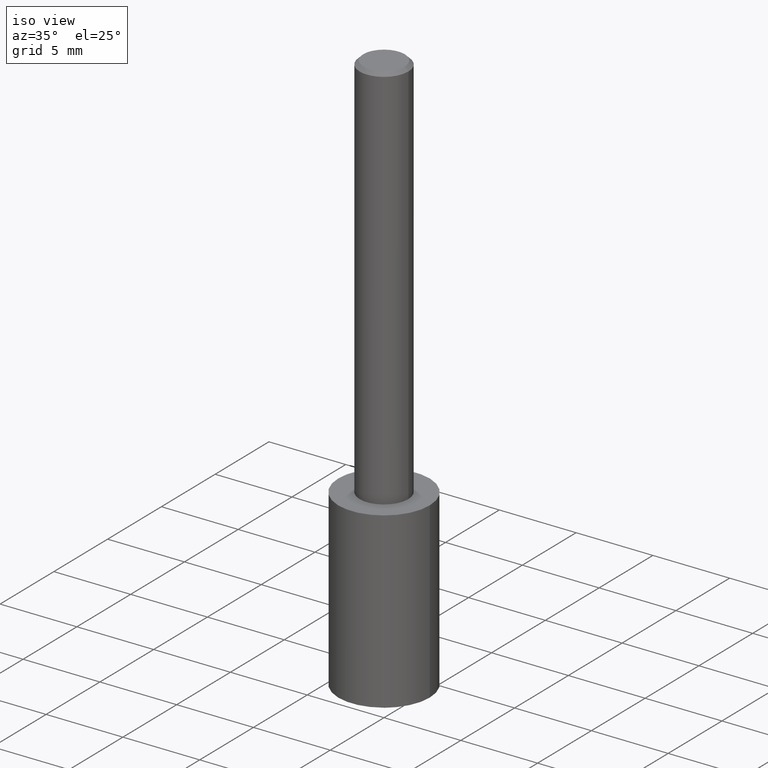
[diagram: clean part render]
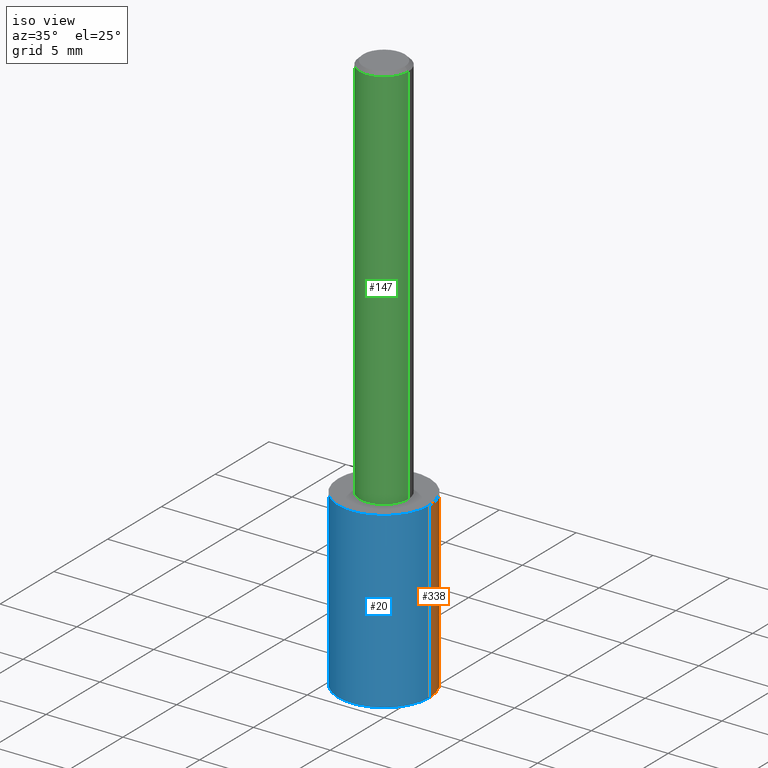
[diagram: same view with three faces highlighted in distinct colors, each labeled with its STEP entity id]
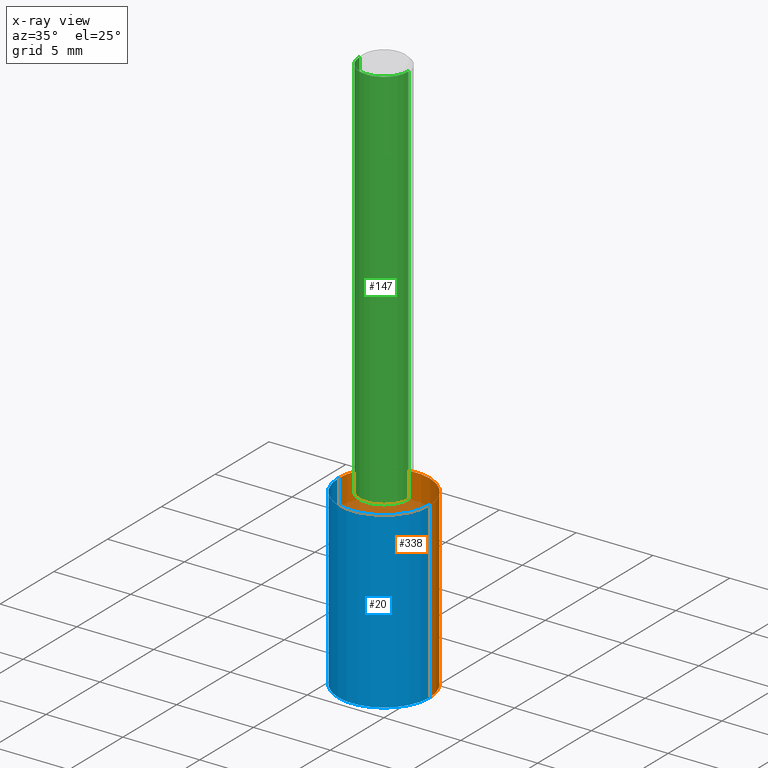
[diagram: x-ray of the same camera — body ghosted, the three highlighted faces saturated]
A machine part, iso view with three faces highlighted in distinct colors.
The next image is the same camera in x-ray (body ghosted, the three faces saturated) — at least one of them is partly hidden behind the body in this view.
Their STEP definitions:

[orange] entity #338 — the highlighted cylindrical surface (partial cylindrical patch) has radius 2.9756 mm, axis along (-0, 0, 1).
#8 = CARTESIAN_POINT ( 'NONE',  ( 0.1171500000000000041, -4.309535416534092526E-15, -1.000000000000000222 ) ) ;
#37 = DIRECTION ( 'NONE',  ( 1.000000000000000000, -6.982962677686266711E-15, 0.000000000000000000 ) ) ;
#45 = AXIS2_PLACEMENT_3D ( 'NONE', #83, #169, #112 ) ;
#50 = LINE ( 'NONE', #161, #255 ) ;
#64 = DIRECTION ( 'NONE',  ( 1.000000000000000000, -6.982962677686266711E-15, 0.000000000000000000 ) ) ;
#66 = ORIENTED_EDGE ( 'NONE', *, *, #220, .T. ) ;
#81 = LINE ( 'NONE', #188, #113 ) ;
#83 = CARTESIAN_POINT ( 'NONE',  ( 2.445468806185137438E-29, -3.491481338843146371E-15, -1.000000000000000222 ) ) ;
#85 = CARTESIAN_POINT ( 'NONE',  ( 3.534612280796804494E-29, -5.046489567658612481E-15, -1.445372057847142067 ) ) ;
#97 = CIRCLE ( 'NONE', #140, 0.1171500000000000041 ) ;
#112 = DIRECTION ( 'NONE',  ( 1.000000000000000000, -6.982962677686266711E-15, 0.000000000000000000 ) ) ;
#113 = VECTOR ( 'NONE', #284, 39.37007874015748143 ) ;
#123 = ORIENTED_EDGE ( 'NONE', *, *, #189, .F. ) ;
#128 = VERTEX_POINT ( 'NONE', #317 ) ;
#140 = AXIS2_PLACEMENT_3D ( 'NONE', #85, #197, #37 ) ;
#161 = CARTESIAN_POINT ( 'NONE',  ( -0.1171500000000000041, -2.659080523900189172E-15, -1.000000000000000222 ) ) ;
#169 = DIRECTION ( 'NONE',  ( -2.445468806185136597E-29, 3.491481338843145583E-15, 1.000000000000000000 ) ) ;
#170 = FACE_OUTER_BOUND ( 'NONE', #310, .T. ) ;
#172 = CARTESIAN_POINT ( 'NONE',  ( 2.445468806185136877E-29, -3.491481338843145977E-15, -1.000000000000000222 ) ) ;
#173 = VERTEX_POINT ( 'NONE', #8 ) ;
#176 = ORIENTED_EDGE ( 'NONE', *, *, #309, .F. ) ;
#188 = CARTESIAN_POINT ( 'NONE',  ( 0.1171500000000000041, -4.309535416534092526E-15, -1.000000000000000222 ) ) ;
#189 = EDGE_CURVE ( 'NONE', #326, #173, #81, .T. ) ;
#197 = DIRECTION ( 'NONE',  ( -2.445468806185136597E-29, 3.491481338843145583E-15, 1.000000000000000000 ) ) ;
#199 = ORIENTED_EDGE ( 'NONE', *, *, #285, .T. ) ;
#209 = VERTEX_POINT ( 'NONE', #236 ) ;
#220 = EDGE_CURVE ( 'NONE', #209, #128, #50, .T. ) ;
#231 = DIRECTION ( 'NONE',  ( -2.445468806185136877E-29, 3.491481338843145188E-15, 1.000000000000000000 ) ) ;
#236 = CARTESIAN_POINT ( 'NONE',  ( -0.1171499999999999764, -4.214088752715654492E-15, -1.445372057847142067 ) ) ;
#255 = VECTOR ( 'NONE', #231, 39.37007874015748143 ) ;
#284 = DIRECTION ( 'NONE',  ( -2.445468806185136877E-29, 3.491481338843145188E-15, 1.000000000000000000 ) ) ;
#285 = EDGE_CURVE ( 'NONE', #326, #209, #97, .T. ) ;
#290 = DIRECTION ( 'NONE',  ( -2.445468806185136597E-29, 3.491481338843145583E-15, 1.000000000000000000 ) ) ;
#293 = AXIS2_PLACEMENT_3D ( 'NONE', #172, #290, #64 ) ;
#309 = EDGE_CURVE ( 'NONE', #173, #128, #313, .T. ) ;
#310 = EDGE_LOOP ( 'NONE', ( #199, #66, #176, #123 ) ) ;
#313 = CIRCLE ( 'NONE', #293, 0.1171500000000000041 ) ;
#317 = CARTESIAN_POINT ( 'NONE',  ( -0.1171500000000000041, -3.436584638307922029E-15, -1.000000000000000222 ) ) ;
#320 = CYLINDRICAL_SURFACE ( 'NONE', #45, 0.1171500000000000041 ) ;
#325 = CARTESIAN_POINT ( 'NONE',  ( 0.1171499999999999764, -5.864543645349557452E-15, -1.445372057847142067 ) ) ;
#326 = VERTEX_POINT ( 'NONE', #325 ) ;
#338 = ADVANCED_FACE ( 'NONE', ( #170 ), #320, .T. ) ;

[blue] entity #20 — the highlighted cylindrical surface (partial cylindrical patch) has radius 2.9756 mm, axis along (-0, 0, 1).
#8 = CARTESIAN_POINT ( 'NONE',  ( 0.1171500000000000041, -4.309535416534092526E-15, -1.000000000000000222 ) ) ;
#12 = DIRECTION ( 'NONE',  ( -2.445468806185136597E-29, 3.491481338843145583E-15, 1.000000000000000000 ) ) ;
#20 = ADVANCED_FACE ( 'NONE', ( #182 ), #271, .T. ) ;
#21 = DIRECTION ( 'NONE',  ( -2.445468806185136597E-29, 3.491481338843145583E-15, 1.000000000000000000 ) ) ;
#36 = ORIENTED_EDGE ( 'NONE', *, *, #232, .F. ) ;
#38 = DIRECTION ( 'NONE',  ( -2.445468806185136597E-29, 3.491481338843145583E-15, 1.000000000000000000 ) ) ;
#44 = CARTESIAN_POINT ( 'NONE',  ( 2.445468806185137438E-29, -3.491481338843146371E-15, -1.000000000000000222 ) ) ;
#47 = DIRECTION ( 'NONE',  ( 1.000000000000000000, -6.982962677686266711E-15, 0.000000000000000000 ) ) ;
#50 = LINE ( 'NONE', #161, #255 ) ;
#52 = AXIS2_PLACEMENT_3D ( 'NONE', #44, #12, #47 ) ;
#60 = EDGE_CURVE ( 'NONE', #209, #326, #165, .T. ) ;
#81 = LINE ( 'NONE', #188, #113 ) ;
#89 = ORIENTED_EDGE ( 'NONE', *, *, #220, .F. ) ;
#98 = ORIENTED_EDGE ( 'NONE', *, *, #60, .T. ) ;
#106 = AXIS2_PLACEMENT_3D ( 'NONE', #316, #38, #329 ) ;
#113 = VECTOR ( 'NONE', #284, 39.37007874015748143 ) ;
#128 = VERTEX_POINT ( 'NONE', #317 ) ;
#130 = CIRCLE ( 'NONE', #184, 0.1171500000000000041 ) ;
#161 = CARTESIAN_POINT ( 'NONE',  ( -0.1171500000000000041, -2.659080523900189172E-15, -1.000000000000000222 ) ) ;
#165 = CIRCLE ( 'NONE', #106, 0.1171500000000000041 ) ;
#173 = VERTEX_POINT ( 'NONE', #8 ) ;
#182 = FACE_OUTER_BOUND ( 'NONE', #295, .T. ) ;
#184 = AXIS2_PLACEMENT_3D ( 'NONE', #262, #21, #278 ) ;
#188 = CARTESIAN_POINT ( 'NONE',  ( 0.1171500000000000041, -4.309535416534092526E-15, -1.000000000000000222 ) ) ;
#189 = EDGE_CURVE ( 'NONE', #326, #173, #81, .T. ) ;
#209 = VERTEX_POINT ( 'NONE', #236 ) ;
#220 = EDGE_CURVE ( 'NONE', #209, #128, #50, .T. ) ;
#231 = DIRECTION ( 'NONE',  ( -2.445468806185136877E-29, 3.491481338843145188E-15, 1.000000000000000000 ) ) ;
#232 = EDGE_CURVE ( 'NONE', #128, #173, #130, .T. ) ;
#236 = CARTESIAN_POINT ( 'NONE',  ( -0.1171499999999999764, -4.214088752715654492E-15, -1.445372057847142067 ) ) ;
#255 = VECTOR ( 'NONE', #231, 39.37007874015748143 ) ;
#262 = CARTESIAN_POINT ( 'NONE',  ( 2.445468806185136877E-29, -3.491481338843145977E-15, -1.000000000000000222 ) ) ;
#271 = CYLINDRICAL_SURFACE ( 'NONE', #52, 0.1171500000000000041 ) ;
#278 = DIRECTION ( 'NONE',  ( 1.000000000000000000, -6.982962677686266711E-15, 0.000000000000000000 ) ) ;
#284 = DIRECTION ( 'NONE',  ( -2.445468806185136877E-29, 3.491481338843145188E-15, 1.000000000000000000 ) ) ;
#295 = EDGE_LOOP ( 'NONE', ( #89, #98, #340, #36 ) ) ;
#316 = CARTESIAN_POINT ( 'NONE',  ( 3.534612280796804494E-29, -5.046489567658612481E-15, -1.445372057847142067 ) ) ;
#317 = CARTESIAN_POINT ( 'NONE',  ( -0.1171500000000000041, -3.436584638307922029E-15, -1.000000000000000222 ) ) ;
#325 = CARTESIAN_POINT ( 'NONE',  ( 0.1171499999999999764, -5.864543645349557452E-15, -1.445372057847142067 ) ) ;
#326 = VERTEX_POINT ( 'NONE', #325 ) ;
#329 = DIRECTION ( 'NONE',  ( 1.000000000000000000, -6.982962677686266711E-15, 0.000000000000000000 ) ) ;
#340 = ORIENTED_EDGE ( 'NONE', *, *, #189, .T. ) ;

[green] entity #147 — the highlighted cylindrical surface (edge-blend (fillet) strip) has radius 1.5875 mm, axis along (-0, 0, 1).
#14 = AXIS2_PLACEMENT_3D ( 'NONE', #166, #260, #339 ) ;
#17 = CARTESIAN_POINT ( 'NONE',  ( 2.292627005798582375E-31, -3.273263755165472650E-17, -0.009375000000000067307 ) ) ;
#23 = DIRECTION ( 'NONE',  ( 1.000000000000000000, -6.982962677686266711E-15, 4.876176775795935793E-29 ) ) ;
#26 = FACE_OUTER_BOUND ( 'NONE', #92, .T. ) ;
#30 = ORIENTED_EDGE ( 'NONE', *, *, #33, .F. ) ;
#33 = EDGE_CURVE ( 'NONE', #324, #267, #263, .T. ) ;
#41 = VERTEX_POINT ( 'NONE', #167 ) ;
#48 = LINE ( 'NONE', #134, #233 ) ;
#63 = DIRECTION ( 'NONE',  ( -2.445468806185136597E-29, 3.491481338843145583E-15, 1.000000000000000000 ) ) ;
#67 = LINE ( 'NONE', #77, #230 ) ;
#77 = CARTESIAN_POINT ( 'NONE',  ( -0.06250000000000006939, 4.440892098500631092E-16, -3.074334431409319267E-30 ) ) ;
#87 = CARTESIAN_POINT ( 'NONE',  ( 0.06250000000000012490, -3.927916506198539224E-15, -1.000000000000000222 ) ) ;
#92 = EDGE_LOOP ( 'NONE', ( #274, #281, #249, #30 ) ) ;
#100 = CARTESIAN_POINT ( 'NONE',  ( 0.000000000000000000, 0.000000000000000000, 0.000000000000000000 ) ) ;
#118 = CARTESIAN_POINT ( 'NONE',  ( 0.06250000000000000000, -4.691678049070464390E-16, -0.009375000000000067307 ) ) ;
#120 = VERTEX_POINT ( 'NONE', #87 ) ;
#122 = AXIS2_PLACEMENT_3D ( 'NONE', #17, #125, #302 ) ;
#125 = DIRECTION ( 'NONE',  ( -2.445468806185136597E-29, 3.491481338843145583E-15, 1.000000000000000000 ) ) ;
#134 = CARTESIAN_POINT ( 'NONE',  ( 0.06250000000000006939, -4.364351673553921624E-16, 3.047610484872463374E-30 ) ) ;
#139 = CYLINDRICAL_SURFACE ( 'NONE', #241, 0.06250000000000006939 ) ;
#147 = ADVANCED_FACE ( 'NONE', ( #26 ), #139, .T. ) ;
#158 = EDGE_CURVE ( 'NONE', #41, #324, #67, .T. ) ;
#160 = CIRCLE ( 'NONE', #14, 0.06250000000000012490 ) ;
#166 = CARTESIAN_POINT ( 'NONE',  ( 2.445468806185137438E-29, -3.491481338843146371E-15, -1.000000000000000222 ) ) ;
#167 = CARTESIAN_POINT ( 'NONE',  ( -0.06250000000000012490, -1.318017778347335489E-15, -1.000000000000000222 ) ) ;
#174 = DIRECTION ( 'NONE',  ( -2.445468806185136877E-29, 3.491481338843145188E-15, 1.000000000000000000 ) ) ;
#203 = EDGE_CURVE ( 'NONE', #41, #120, #160, .T. ) ;
#219 = CARTESIAN_POINT ( 'NONE',  ( -0.06250000000000000000, -1.318017778347336672E-15, -0.009375000000000067307 ) ) ;
#230 = VECTOR ( 'NONE', #318, 39.37007874015748143 ) ;
#233 = VECTOR ( 'NONE', #174, 39.37007874015748143 ) ;
#235 = EDGE_CURVE ( 'NONE', #120, #267, #48, .T. ) ;
#241 = AXIS2_PLACEMENT_3D ( 'NONE', #100, #63, #23 ) ;
#249 = ORIENTED_EDGE ( 'NONE', *, *, #235, .T. ) ;
#260 = DIRECTION ( 'NONE',  ( -2.445468806185136597E-29, 3.491481338843145583E-15, 1.000000000000000000 ) ) ;
#263 = CIRCLE ( 'NONE', #122, 0.06250000000000000000 ) ;
#267 = VERTEX_POINT ( 'NONE', #118 ) ;
#274 = ORIENTED_EDGE ( 'NONE', *, *, #158, .F. ) ;
#281 = ORIENTED_EDGE ( 'NONE', *, *, #203, .T. ) ;
#302 = DIRECTION ( 'NONE',  ( 1.000000000000000000, -6.982962677686266711E-15, 0.000000000000000000 ) ) ;
#318 = DIRECTION ( 'NONE',  ( -2.445468806185136877E-29, 3.491481338843145188E-15, 1.000000000000000000 ) ) ;
#324 = VERTEX_POINT ( 'NONE', #219 ) ;
#339 = DIRECTION ( 'NONE',  ( 1.000000000000000000, -6.982962677686264344E-15, 0.000000000000000000 ) ) ;